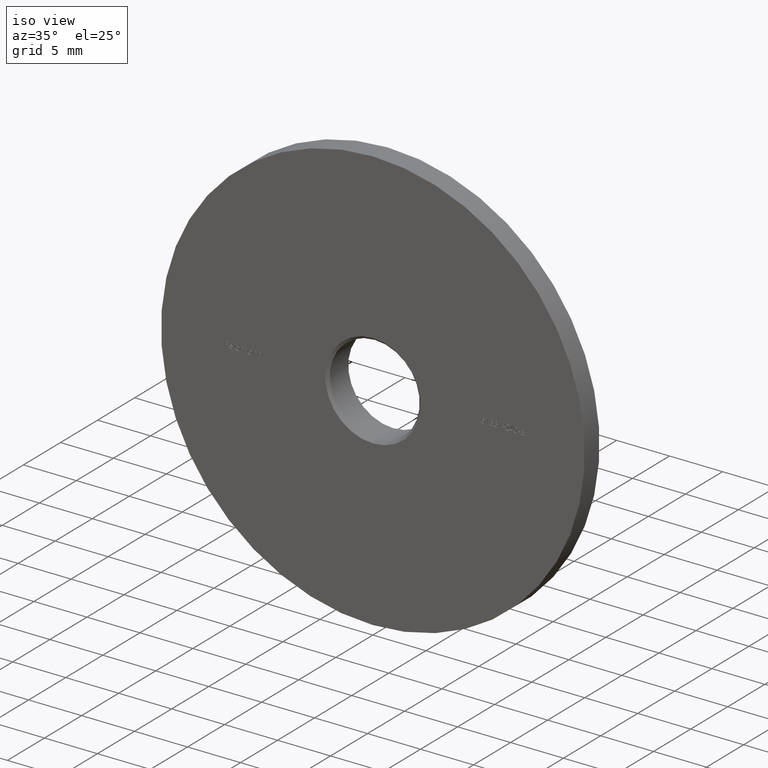
[diagram: clean part render]
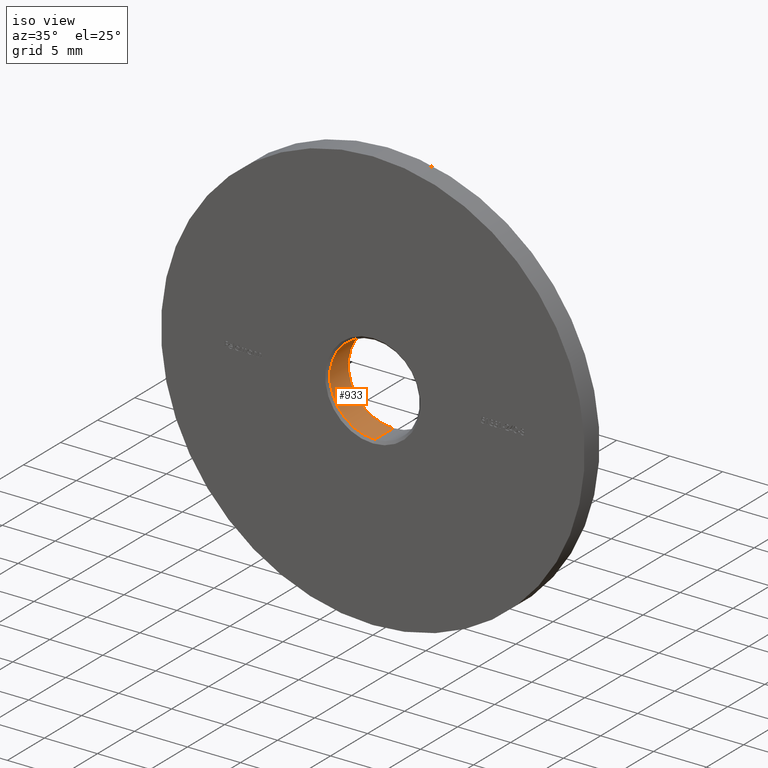
[diagram: same view with one face highlighted and labeled with its STEP entity id]
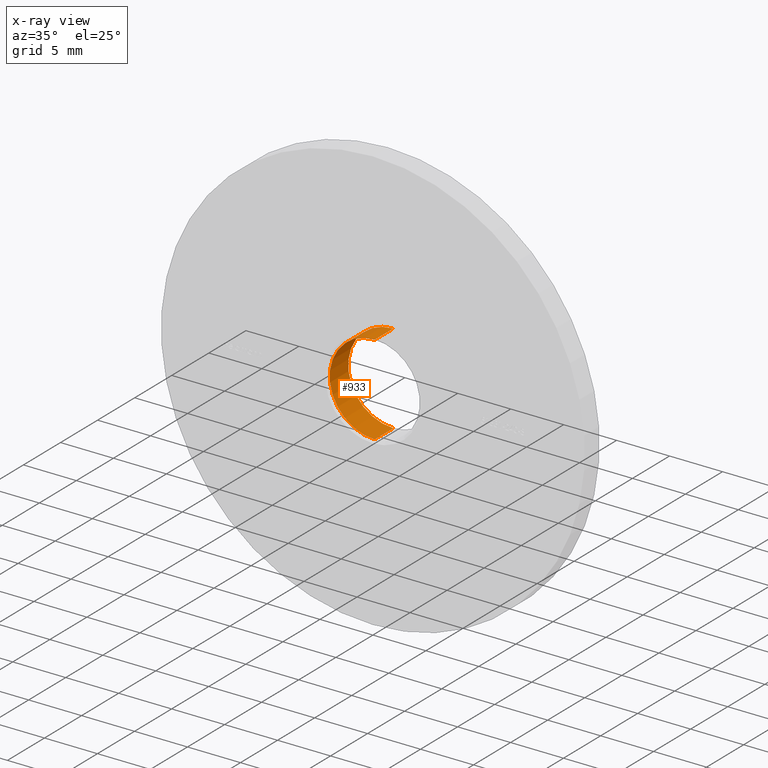
[diagram: x-ray of the same camera — body ghosted, the highlighted face saturated]
A machine part, iso view. The second image highlights one B-rep face of the part: STEP entity #933.
The next image is the same camera in x-ray: the body ghosted, the highlighted face saturated — about 0% of this face is hidden behind the body in this view.
In plain terms, the highlighted cylindrical surface (partial cylindrical patch) has radius 4.25 mm, axis along (-0, -1, -0).
Its self-contained STEP definition (entity closure, byte-faithful):
#192 = VERTEX_POINT ( 'NONE', #9813 ) ;
#359 = CARTESIAN_POINT ( 'NONE',  ( 5.204748896376250699E-16, 3.000000000000000000, 4.250000000000000000 ) ) ;
#605 = CIRCLE ( 'NONE', #5235, 4.250000000000000000 ) ;
#933 = ADVANCED_FACE ( 'NONE', ( #2366 ), #9377, .F. ) ;
#1718 = CARTESIAN_POINT ( 'NONE',  ( 0.000000000000000000, 2.749999999999995559, -4.250000000000000000 ) ) ;
#2017 = VECTOR ( 'NONE', #4829, 1000.000000000000000 ) ;
#2175 = CARTESIAN_POINT ( 'NONE',  ( 5.204748896376250699E-16, 0.2500000000000097700, 4.250000000000000000 ) ) ;
#2323 = ORIENTED_EDGE ( 'NONE', *, *, #11304, .T. ) ;
#2366 = FACE_OUTER_BOUND ( 'NONE', #4932, .T. ) ;
#2367 = LINE ( 'NONE', #359, #2017 ) ;
#2759 = DIRECTION ( 'NONE',  ( 0.000000000000000000, 1.000000000000000000, 0.000000000000000000 ) ) ;
#3376 = DIRECTION ( 'NONE',  ( -0.000000000000000000, -1.000000000000000000, -0.000000000000000000 ) ) ;
#3442 = EDGE_CURVE ( 'NONE', #6178, #7183, #605, .T. ) ;
#3531 = CARTESIAN_POINT ( 'NONE',  ( 0.000000000000000000, 3.000000000000000000, -4.250000000000000000 ) ) ;
#4407 = AXIS2_PLACEMENT_3D ( 'NONE', #7817, #6832, #4541 ) ;
#4541 = DIRECTION ( 'NONE',  ( 0.000000000000000000, 0.000000000000000000, -1.000000000000000000 ) ) ;
#4603 = DIRECTION ( 'NONE',  ( 0.000000000000000000, 0.000000000000000000, 1.000000000000000000 ) ) ;
#4829 = DIRECTION ( 'NONE',  ( -0.000000000000000000, -1.000000000000000000, -0.000000000000000000 ) ) ;
#4877 = AXIS2_PLACEMENT_3D ( 'NONE', #9272, #2759, #12565 ) ;
#4932 = EDGE_LOOP ( 'NONE', ( #11725, #2323, #12825, #7155 ) ) ;
#5235 = AXIS2_PLACEMENT_3D ( 'NONE', #6748, #3376, #4603 ) ;
#6178 = VERTEX_POINT ( 'NONE', #2175 ) ;
#6748 = CARTESIAN_POINT ( 'NONE',  ( 0.000000000000000000, 0.2500000000000097700, 0.000000000000000000 ) ) ;
#6832 = DIRECTION ( 'NONE',  ( -0.000000000000000000, -1.000000000000000000, -0.000000000000000000 ) ) ;
#7155 = ORIENTED_EDGE ( 'NONE', *, *, #9133, .F. ) ;
#7183 = VERTEX_POINT ( 'NONE', #12687 ) ;
#7760 = EDGE_CURVE ( 'NONE', #10379, #192, #8457, .T. ) ;
#7817 = CARTESIAN_POINT ( 'NONE',  ( 0.000000000000000000, 3.000000000000000000, 0.000000000000000000 ) ) ;
#8457 = CIRCLE ( 'NONE', #4877, 4.250000000000000000 ) ;
#8970 = LINE ( 'NONE', #3531, #12212 ) ;
#9133 = EDGE_CURVE ( 'NONE', #10379, #7183, #8970, .T. ) ;
#9272 = CARTESIAN_POINT ( 'NONE',  ( 0.000000000000000000, 2.749999999999995559, 0.000000000000000000 ) ) ;
#9377 = CYLINDRICAL_SURFACE ( 'NONE', #4407, 4.250000000000000000 ) ;
#9813 = CARTESIAN_POINT ( 'NONE',  ( 5.204748896376250699E-16, 2.749999999999995559, 4.250000000000000000 ) ) ;
#10379 = VERTEX_POINT ( 'NONE', #1718 ) ;
#10411 = DIRECTION ( 'NONE',  ( -0.000000000000000000, -1.000000000000000000, -0.000000000000000000 ) ) ;
#11304 = EDGE_CURVE ( 'NONE', #192, #6178, #2367, .T. ) ;
#11725 = ORIENTED_EDGE ( 'NONE', *, *, #7760, .T. ) ;
#12212 = VECTOR ( 'NONE', #10411, 1000.000000000000000 ) ;
#12565 = DIRECTION ( 'NONE',  ( 0.000000000000000000, 0.000000000000000000, 1.000000000000000000 ) ) ;
#12687 = CARTESIAN_POINT ( 'NONE',  ( 0.000000000000000000, 0.2500000000000097700, -4.250000000000000000 ) ) ;
#12825 = ORIENTED_EDGE ( 'NONE', *, *, #3442, .T. ) ;